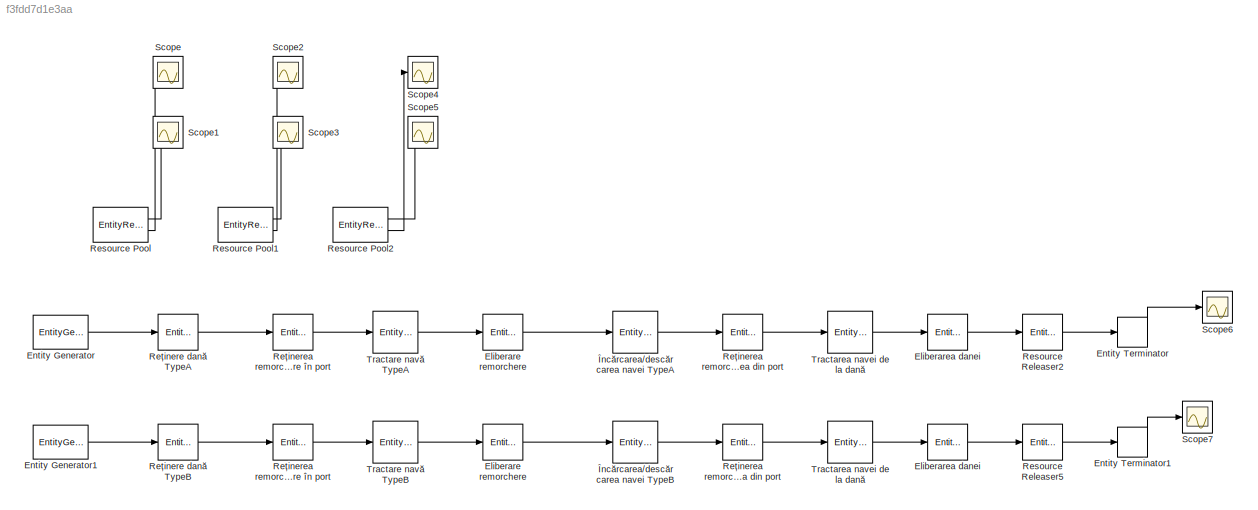
MODEL slx_f3fdd7d1e3aa
KIND model
CONFIG AbsTol = auto
CONFIG FixedStep = auto
CONFIG MaxStep = auto
CONFIG MinStep = auto
CONFIG RelTol = 1e-3
CONFIG SampleTimeConstraint = Unconstrained
CONFIG Solver = VariableStepDiscrete
CONFIG SolverMode = Auto
CONFIG SolverName = VariableStepDiscrete
CONFIG StartTime = 0.0
CONFIG StopTime = 2000
BLOCK [EntityResourceReleaser] Eliberare remorchere
  InputPortMap = u0
  InputPortMessageModes = m
  OutputPortMap = o0
  OutputPortMessageModes = m
  Ports = [1, 1]
  ResourceName = Remorci
  ResourceToRelease = Selected
BLOCK [EntityResourceReleaser] Eliberare remorchere 
  InputPortMap = u0
  InputPortMessageModes = m
  OutputPortMap = o0
  OutputPortMessageModes = m
  Ports = [1, 1]
  ResourceName = Remorci
  ResourceToRelease = Selected
BLOCK [EntityResourceReleaser] Eliberarea danei
  InputPortMap = u0
  InputPortMessageModes = m
  OutputPortMap = o0
  OutputPortMessageModes = m
  Ports = [1, 1]
  ResourceName = Remorci
  ResourceToRelease = Selected
BLOCK [EntityResourceReleaser] Eliberarea danei 
  InputPortMap = u0
  InputPortMessageModes = m
  OutputPortMap = o0
  OutputPortMessageModes = m
  Ports = [1, 1]
  ResourceName = Remorci
  ResourceToRelease = Selected
BLOCK [EntityGenerator] Entity Generator
  AttributeName = Type
  EntityType = Structured
  EntityTypeName = TypeA
  IntergenerationTimeAction = dt = 1.7 + rand * 3;
  OutputPortMap = o3
  OutputPortMessageModes = m
  Ports = [0, 1]
  TimeSource = MATLAB action
BLOCK [EntityGenerator] Entity Generator1
  AttributeInitialValue = 2
  AttributeName = Type
  EntityType = Structured
  EntityTypeName = TypeB
  IntergenerationTimeAction = dt = 0.75 + rand * 1.5;
  OutputPortMap = o3
  OutputPortMessageModes = m
  Ports = [0, 1]
  TimeSource = MATLAB action
BLOCK [EntityTerminator] Entity Terminator
  InputPortMap = u0
  InputPortMessageModes = m
  NumberEntitiesArrived = on
  OutputPortMap = o0
  Ports = [1, 1]
BLOCK [EntityTerminator] Entity Terminator1
  InputPortMap = u0
  InputPortMessageModes = m
  NumberEntitiesArrived = on
  OutputPortMap = o0
  Ports = [1, 1]
BLOCK [EntityResourcePool] Resource Pool
  AmountInUse = on
  AverageUtilization = on
  OutputPortMap = o0,o1
  Ports = [0, 2]
  ResourceAmount = 3
  ResourceName = DaneA
BLOCK [EntityResourcePool] Resource Pool1
  AmountInUse = on
  AverageUtilization = on
  OutputPortMap = o0,o1
  Ports = [0, 2]
  ResourceAmount = 2
  ResourceName = DaneB
BLOCK [EntityResourcePool] Resource Pool2
  AmountInUse = on
  AverageUtilization = on
  OutputPortMap = o0,o1
  Ports = [0, 2]
  ResourceAmount = 3
  ResourceName = Remorci
BLOCK [EntityResourceReleaser] Resource Releaser2
  InputPortMap = u0
  InputPortMessageModes = m
  OutputPortMap = o0
  OutputPortMessageModes = m
  Ports = [1, 1]
  ResourceName = DaneA
  ResourceToRelease = Selected
BLOCK [EntityResourceReleaser] Resource Releaser5
  InputPortMap = u0
  InputPortMessageModes = m
  OutputPortMap = o0
  OutputPortMessageModes = m
  Ports = [1, 1]
  ResourceName = DaneB
  ResourceToRelease = Selected
BLOCK [EntityResourceAcquirer] Reținere dană TypeA
  InputPortMap = u0
  InputPortMessageModes = m
  NumberWaitingEntities = 5
  OutputPortMap = o3
  OutputPortMessageModes = m
  Ports = [1, 1]
  ResourceName = DaneA
BLOCK [EntityResourceAcquirer] Reținere dană TypeB
  InputPortMap = u0
  InputPortMessageModes = m
  NumberWaitingEntities = 5
  OutputPortMap = o3
  OutputPortMessageModes = m
  Ports = [1, 1]
  ResourceName = DaneB
BLOCK [EntityResourceAcquirer] Reținerea remorcherelor pentru ieșirea din port
  InputPortMap = u0
  InputPortMessageModes = m
  NumberWaitingEntities = 5
  OutputPortMap = o3
  OutputPortMessageModes = m
  Ports = [1, 1]
  ResourceAmount = 2
  ResourceName = Remorci
BLOCK [EntityResourceAcquirer] Reținerea remorcherelor pentru ieșirea din port 
  InputPortMap = u0
  InputPortMessageModes = m
  NumberWaitingEntities = 5
  OutputPortMap = o3
  OutputPortMessageModes = m
  Ports = [1, 1]
  ResourceName = Remorci
BLOCK [EntityResourceAcquirer] Reținerea remorcherelor pentru intrare în port
  InputPortMap = u0
  InputPortMessageModes = m
  NumberWaitingEntities = 5
  OutputPortMap = o3
  OutputPortMessageModes = m
  Ports = [1, 1]
  ResourceAmount = 3
  ResourceName = Remorci
BLOCK [EntityResourceAcquirer] Reținerea remorcherelor pentru intrare în port 
  InputPortMap = u0
  InputPortMessageModes = m
  NumberWaitingEntities = 5
  OutputPortMap = o3
  OutputPortMessageModes = m
  Ports = [1, 1]
  ResourceAmount = 2
  ResourceName = Remorci
BLOCK [Scope] Scope
  Ports = [1]
  ScopeSpecificationString = Simulink.scopes.TimeScopeBlockCfg('CurrentConfiguration', extmgr.ConfigurationSet(extmgr.Configuration('Core','General UI',true),extmgr.Configuration('Core','Source UI',true),extmgr.Configuration('Sources','WiredSimulink',true,'DataLoggingVariableName','ScopeData1','DataLoggingLimitDataPoints',true,'DataLoggingSaveFormat','Array','DataLoggingDecimation','1','DataLoggingDecimateData',true),extmgr.C...<+1657ch>
BLOCK [Scope] Scope1
  Ports = [1]
  ScopeSpecificationString = Simulink.scopes.TimeScopeBlockCfg('CurrentConfiguration', extmgr.ConfigurationSet(extmgr.Configuration('Core','General UI',true),extmgr.Configuration('Core','Source UI',true),extmgr.Configuration('Sources','WiredSimulink',true,'DataLoggingVariableName','ScopeData2','DataLoggingLimitDataPoints',true,'DataLoggingSaveFormat','Array','DataLoggingDecimation','1','DataLoggingDecimateData',true),extmgr.C...<+1616ch>
BLOCK [Scope] Scope2
  Ports = [1]
  ScopeSpecificationString = Simulink.scopes.TimeScopeBlockCfg('CurrentConfiguration', extmgr.ConfigurationSet(extmgr.Configuration('Core','General UI',true),extmgr.Configuration('Core','Source UI',true),extmgr.Configuration('Sources','WiredSimulink',true,'DataLoggingVariableName','ScopeData3','DataLoggingLimitDataPoints',true,'DataLoggingSaveFormat','Array','DataLoggingDecimation','1','DataLoggingDecimateData',true),extmgr.C...<+1661ch>
BLOCK [Scope] Scope3
  Ports = [1]
  ScopeSpecificationString = Simulink.scopes.TimeScopeBlockCfg('CurrentConfiguration', extmgr.ConfigurationSet(extmgr.Configuration('Core','General UI',true),extmgr.Configuration('Core','Source UI',true),extmgr.Configuration('Sources','WiredSimulink',true,'DataLoggingVariableName','ScopeData4','DataLoggingLimitDataPoints',true,'DataLoggingSaveFormat','Array','DataLoggingDecimation','1','DataLoggingDecimateData',true),extmgr.C...<+1652ch>
BLOCK [Scope] Scope4
  Ports = [1]
  ScopeSpecificationString = Simulink.scopes.TimeScopeBlockCfg('CurrentConfiguration', extmgr.ConfigurationSet(extmgr.Configuration('Core','General UI',true),extmgr.Configuration('Core','Source UI',true),extmgr.Configuration('Sources','WiredSimulink',true,'DataLoggingVariableName','ScopeData5'),extmgr.Configuration('Visuals','Time Domain',true,'SerializedDisplays',{struct('MinYLimReal','-0.125','MaxYLimReal','1.125','YLabelRe...<+1517ch>
BLOCK [Scope] Scope5
  Ports = [1]
  ScopeSpecificationString = Simulink.scopes.TimeScopeBlockCfg('CurrentConfiguration', extmgr.ConfigurationSet(extmgr.Configuration('Core','General UI',true),extmgr.Configuration('Core','Source UI',true),extmgr.Configuration('Sources','WiredSimulink',true,'DataLoggingVariableName','ScopeData6'),extmgr.Configuration('Visuals','Time Domain',true,'SerializedDisplays',{struct('MinYLimReal','-0.375','MaxYLimReal','3.375','YLabelRe...<+1529ch>
BLOCK [Scope] Scope6
  Ports = [1]
  ScopeSpecificationString = Simulink.scopes.TimeScopeBlockCfg('CurrentConfiguration', extmgr.ConfigurationSet(extmgr.Configuration('Core','General UI',true),extmgr.Configuration('Core','Source UI',true),extmgr.Configuration('Sources','WiredSimulink',true,'DataLoggingVariableName','ScopeData7'),extmgr.Configuration('Visuals','Time Domain',true,'SerializedDisplays',{struct('MinYLimReal','-28.625','MaxYLimReal','267.625','YLabe...<+1509ch>
BLOCK [Scope] Scope7
  Ports = [1]
  ScopeSpecificationString = Simulink.scopes.TimeScopeBlockCfg('CurrentConfiguration', extmgr.ConfigurationSet(extmgr.Configuration('Core','General UI',true),extmgr.Configuration('Core','Source UI',true),extmgr.Configuration('Sources','WiredSimulink',true),extmgr.Configuration('Visuals','Time Domain',true,'SerializedDisplays',{struct('MinYLimReal','-58.625','MaxYLimReal','537.625','YLabelReal','','MinYLimMag','0.00000','MaxYL...<+1471ch>
BLOCK [EntityServer] Tractare navă TypeA
  Capacity = 1
  InputPortMap = u2
  InputPortMessageModes = m
  OutputPortMap = o9
  OutputPortMessageModes = m
  Ports = [1, 1]
  ServiceTimeValue = 0.5
BLOCK [EntityServer] Tractare navă TypeB
  Capacity = 1
  InputPortMap = u2
  InputPortMessageModes = m
  OutputPortMap = o9
  OutputPortMessageModes = m
  Ports = [1, 1]
  ServiceTimeValue = 0.5
BLOCK [EntityServer] Tractarea navei de la dană 
  Capacity = 1
  InputPortMap = u2
  InputPortMessageModes = m
  OutputPortMap = o9
  OutputPortMessageModes = m
  Ports = [1, 1]
  ServiceTimeAction = dt = 6.9 + rand * 3;
  ServiceTimeValue = 0.25
BLOCK [EntityServer] Tractarea navei de la dană  
  Capacity = 1
  InputPortMap = u2
  InputPortMessageModes = m
  OutputPortMap = o9
  OutputPortMessageModes = m
  Ports = [1, 1]
  ServiceTimeAction = dt = 6.9 + rand * 3;
  ServiceTimeValue = 0.25
BLOCK [EntityServer] Încărcarea//descărcarea navei TypeA
  Capacity = 1
  InputPortMap = u2
  InputPortMessageModes = m
  OutputPortMap = o9
  OutputPortMessageModes = m
  Ports = [1, 1]
  ServiceTimeAction = dt = 6.9 + rand * 3;
  ServiceTimeSource = MATLAB action
  ServiceTimeValue = 0.5
BLOCK [EntityServer] Încărcarea//descărcarea navei TypeB
  Capacity = 1
  InputPortMap = u2
  InputPortMessageModes = m
  OutputPortMap = o9
  OutputPortMessageModes = m
  Ports = [1, 1]
  ServiceTimeAction = dt = 1.5 + rand * 1.2;
  ServiceTimeSource = MATLAB action
  ServiceTimeValue = 0.5
LINE Eliberare remorchere :1 -> Încărcarea//descărcarea navei TypeB:1
LINE Eliberare remorchere:1 -> Încărcarea//descărcarea navei TypeA:1
LINE Eliberarea danei :1 -> Resource Releaser5:1
LINE Eliberarea danei:1 -> Resource Releaser2:1
LINE Entity Generator1:1 -> Reținere dană TypeB:1
LINE Entity Generator:1 -> Reținere dană TypeA:1
LINE Entity Terminator1:1 -> Scope7:1
LINE Entity Terminator:1 -> Scope6:1
LINE Resource Pool1:1 -> Scope3:1
LINE Resource Pool1:2 -> Scope2:1
LINE Resource Pool2:1 -> Scope5:1
LINE Resource Pool2:2 -> Scope4:1
LINE Resource Pool:1 -> Scope1:1
LINE Resource Pool:2 -> Scope:1
LINE Resource Releaser2:1 -> Entity Terminator:1
LINE Resource Releaser5:1 -> Entity Terminator1:1
LINE Reținere dană TypeA:1 -> Reținerea remorcherelor pentru intrare în port:1
LINE Reținere dană TypeB:1 -> Reținerea remorcherelor pentru intrare în port :1
LINE Reținerea remorcherelor pentru ieșirea din port :1 -> Tractarea navei de la dană  :1
LINE Reținerea remorcherelor pentru ieșirea din port:1 -> Tractarea navei de la dană :1
LINE Reținerea remorcherelor pentru intrare în port :1 -> Tractare navă TypeB:1
LINE Reținerea remorcherelor pentru intrare în port:1 -> Tractare navă TypeA:1
LINE Tractare navă TypeA:1 -> Eliberare remorchere:1
LINE Tractare navă TypeB:1 -> Eliberare remorchere :1
LINE Tractarea navei de la dană  :1 -> Eliberarea danei :1
LINE Tractarea navei de la dană :1 -> Eliberarea danei:1
LINE Încărcarea//descărcarea navei TypeA:1 -> Reținerea remorcherelor pentru ieșirea din port:1
LINE Încărcarea//descărcarea navei TypeB:1 -> Reținerea remorcherelor pentru ieșirea din port :1
